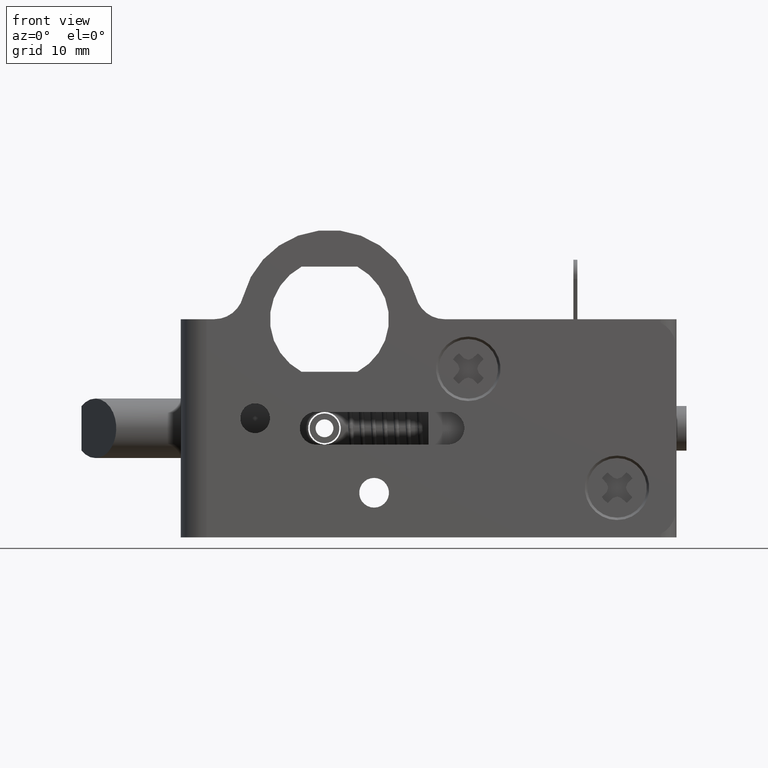
[diagram: clean part render]
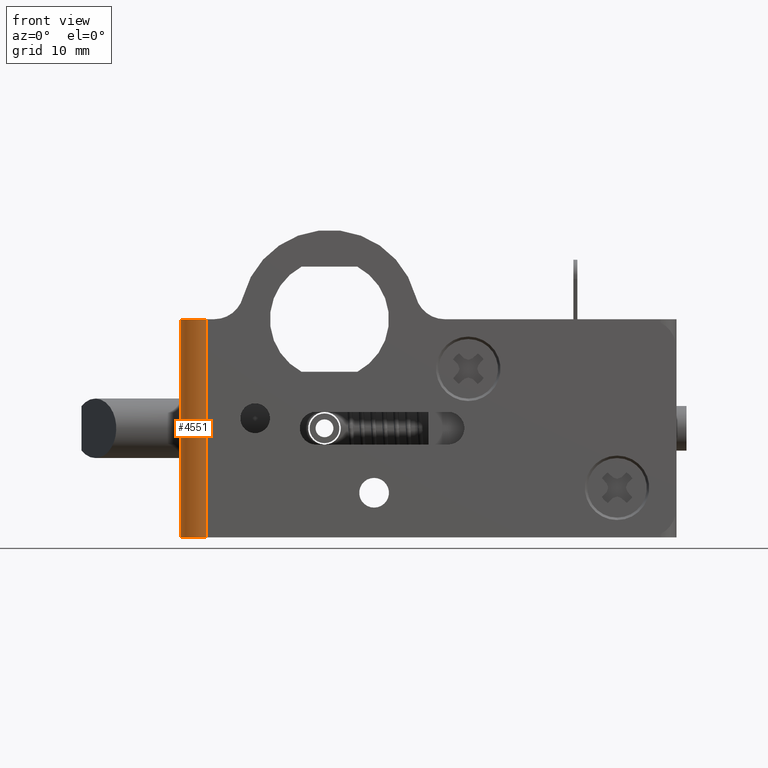
[diagram: same view with one face highlighted and labeled with its STEP entity id]
A machine part, front view. The second image highlights one B-rep face of the part: STEP entity #4551.
In plain terms, the highlighted cylindrical surface (edge-blend (fillet) strip) has radius 2.6 mm, axis along (0, 0, 1).
Its self-contained STEP definition (entity closure, byte-faithful):
#471 = ORIENTED_EDGE ( 'NONE', *, *, #6200, .F. ) ;
#680 = LINE ( 'NONE', #4792, #9325 ) ;
#1476 = CARTESIAN_POINT ( 'NONE',  ( -14.99999200000000100, 2.599999999999934800, -22.00000000000000000 ) ) ;
#1813 = ORIENTED_EDGE ( 'NONE', *, *, #3732, .F. ) ;
#2590 = DIRECTION ( 'NONE',  ( -0.0000000000000000000, -0.0000000000000000000, 1.000000000000000000 ) ) ;
#2925 = DIRECTION ( 'NONE',  ( -0.0000000000000000000, -0.0000000000000000000, 1.000000000000000000 ) ) ;
#3114 = AXIS2_PLACEMENT_3D ( 'NONE', #8447, #6779, #8407 ) ;
#3120 = ORIENTED_EDGE ( 'NONE', *, *, #8142, .F. ) ;
#3618 = VECTOR ( 'NONE', #2925, 1000.000000000000000 ) ;
#3732 = EDGE_CURVE ( 'NONE', #5993, #6107, #7698, .T. ) ;
#3881 = ORIENTED_EDGE ( 'NONE', *, *, #4202, .F. ) ;
#4202 = EDGE_CURVE ( 'NONE', #5886, #5993, #6518, .T. ) ;
#4551 = ADVANCED_FACE ( 'NONE', ( #7814 ), #9747, .T. ) ;
#4630 = CARTESIAN_POINT ( 'NONE',  ( -12.39999200000000100, 2.599999999999934800, -22.00000000000000000 ) ) ;
#4777 = CIRCLE ( 'NONE', #5039, 2.600000000000000100 ) ;
#4792 = CARTESIAN_POINT ( 'NONE',  ( -12.39999200000000100, -2.842170943040399500E-014, -22.00000000000000000 ) ) ;
#4880 = VERTEX_POINT ( 'NONE', #9895 ) ;
#5039 = AXIS2_PLACEMENT_3D ( 'NONE', #7437, #2590, #8265 ) ;
#5112 = AXIS2_PLACEMENT_3D ( 'NONE', #4630, #10348, #5437 ) ;
#5437 = DIRECTION ( 'NONE',  ( 1.000000000000000000, 0.0000000000000000000, 0.0000000000000000000 ) ) ;
#5886 = VERTEX_POINT ( 'NONE', #10094 ) ;
#5993 = VERTEX_POINT ( 'NONE', #1476 ) ;
#6107 = VERTEX_POINT ( 'NONE', #7266 ) ;
#6200 = EDGE_CURVE ( 'NONE', #6107, #4880, #4777, .T. ) ;
#6518 = CIRCLE ( 'NONE', #5112, 2.600000000000000100 ) ;
#6779 = DIRECTION ( 'NONE',  ( 0.0000000000000000000, 0.0000000000000000000, 1.000000000000000000 ) ) ;
#7266 = CARTESIAN_POINT ( 'NONE',  ( -14.99999200000000100, 2.599999999999934800, 0.0000000000000000000 ) ) ;
#7344 = EDGE_LOOP ( 'NONE', ( #3881, #3120, #471, #1813 ) ) ;
#7437 = CARTESIAN_POINT ( 'NONE',  ( -12.39999200000000100, 2.599999999999934800, 0.0000000000000000000 ) ) ;
#7698 = LINE ( 'NONE', #7861, #3618 ) ;
#7814 = FACE_OUTER_BOUND ( 'NONE', #7344, .T. ) ;
#7861 = CARTESIAN_POINT ( 'NONE',  ( -14.99999200000000100, 2.599999999999934800, 0.0000000000000000000 ) ) ;
#8142 = EDGE_CURVE ( 'NONE', #4880, #5886, #680, .T. ) ;
#8265 = DIRECTION ( 'NONE',  ( -1.000000000000000000, 0.0000000000000000000, 0.0000000000000000000 ) ) ;
#8407 = DIRECTION ( 'NONE',  ( 1.000000000000000000, 0.0000000000000000000, 0.0000000000000000000 ) ) ;
#8447 = CARTESIAN_POINT ( 'NONE',  ( -12.39999200000000100, 2.599999999999934800, -22.00000000000000000 ) ) ;
#9325 = VECTOR ( 'NONE', #10540, 1000.000000000000000 ) ;
#9747 = CYLINDRICAL_SURFACE ( 'NONE', #3114, 2.600000000000000100 ) ;
#9895 = CARTESIAN_POINT ( 'NONE',  ( -12.39999200000000100, -2.842170943040399500E-014, 0.0000000000000000000 ) ) ;
#10094 = CARTESIAN_POINT ( 'NONE',  ( -12.39999200000000100, -2.842170943040399500E-014, -22.00000000000000000 ) ) ;
#10348 = DIRECTION ( 'NONE',  ( -0.0000000000000000000, -0.0000000000000000000, -1.000000000000000000 ) ) ;
#10540 = DIRECTION ( 'NONE',  ( -0.0000000000000000000, -0.0000000000000000000, -1.000000000000000000 ) ) ;